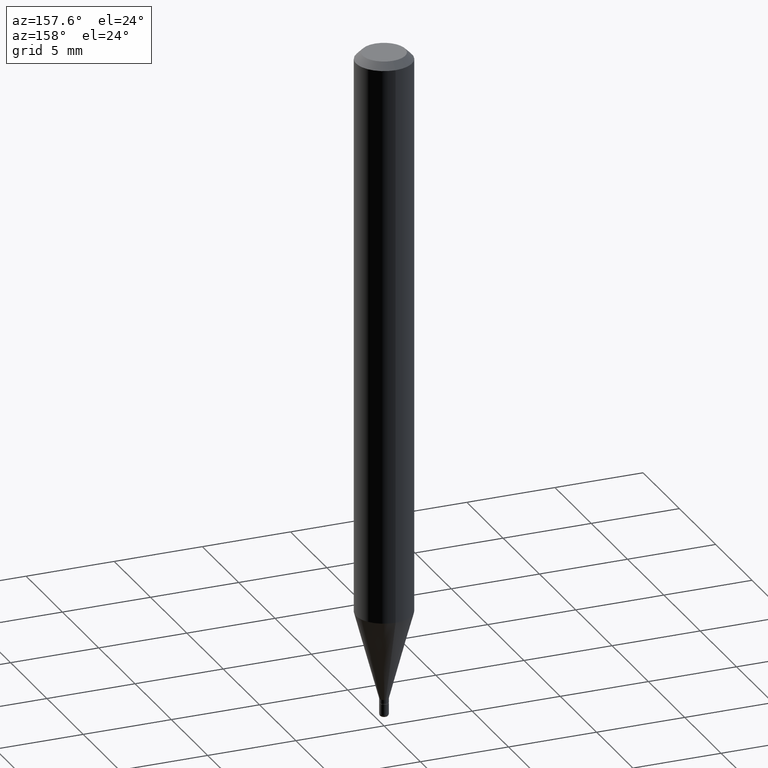
[diagram: clean part render]
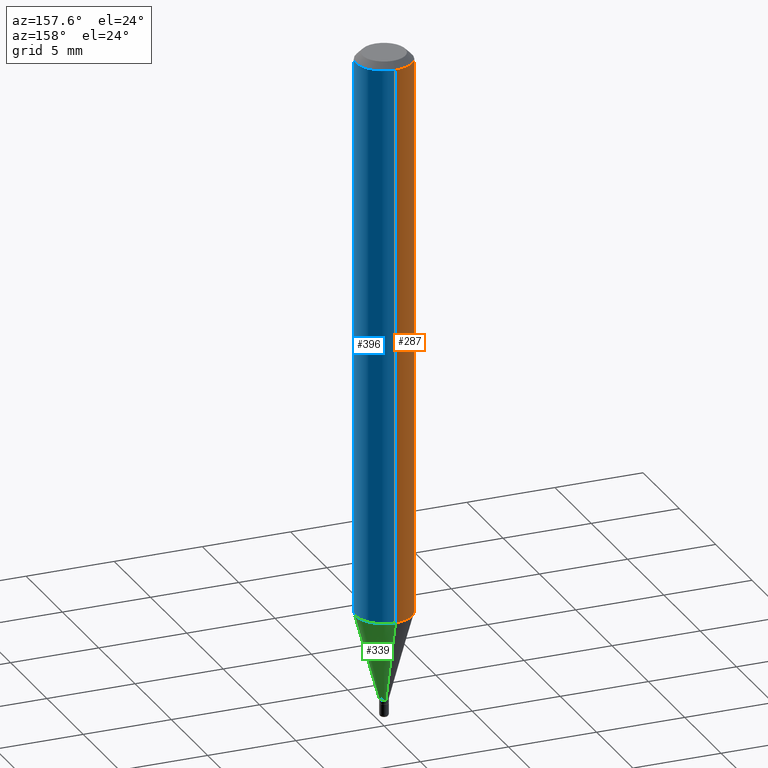
[diagram: same view with three faces highlighted in distinct colors, each labeled with its STEP entity id]
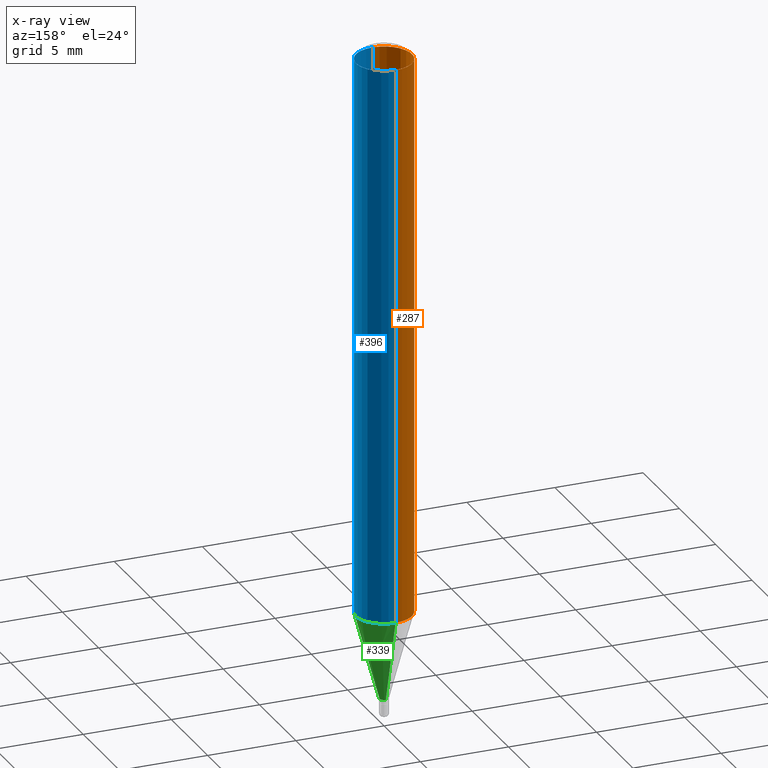
[diagram: x-ray of the same camera — body ghosted, the three highlighted faces saturated]
A machine part, auxiliary view with three faces highlighted in distinct colors.
The next image is the same camera in x-ray (body ghosted, the three faces saturated) — at least one of them is partly hidden behind the body in this view.
Their STEP definitions:

[orange] entity #287 — the highlighted cylindrical surface (edge-blend (fillet) strip) has radius 1.5875 mm, axis along (-0, 0, 1).
#6 = EDGE_CURVE ( 'NONE', #514, #316, #421, .T. ) ;
#20 = ORIENTED_EDGE ( 'NONE', *, *, #349, .F. ) ;
#23 = EDGE_CURVE ( 'NONE', #97, #514, #30, .T. ) ;
#28 = CARTESIAN_POINT ( 'NONE',  ( 4.440892098500625669E-16, 0.06250000000000000000, -2.182132246779680074E-16 ) ) ;
#30 = CIRCLE ( 'NONE', #354, 0.06250000000000000000 ) ;
#31 = ORIENTED_EDGE ( 'NONE', *, *, #368, .F. ) ;
#40 = LINE ( 'NONE', #28, #50 ) ;
#50 = VECTOR ( 'NONE', #348, 39.37007874015748143 ) ;
#53 = CARTESIAN_POINT ( 'NONE',  ( 3.091298793369065102E-29, -4.413379341716774381E-15, -1.264067332602634597 ) ) ;
#57 = DIRECTION ( 'NONE',  ( -6.982962677686265922E-15, -1.000000000000000000, 3.491411594847488118E-15 ) ) ;
#74 = DIRECTION ( 'NONE',  ( -6.982962677686265922E-15, -1.000000000000000000, 3.483106191921935554E-15 ) ) ;
#82 = DIRECTION ( 'NONE',  ( -2.445517508157004013E-29, 3.491411594847488118E-15, 1.000000000000000000 ) ) ;
#97 = VERTEX_POINT ( 'NONE', #480 ) ;
#136 = FACE_OUTER_BOUND ( 'NONE', #156, .T. ) ;
#142 = AXIS2_PLACEMENT_3D ( 'NONE', #508, #465, #74 ) ;
#156 = EDGE_LOOP ( 'NONE', ( #20, #191, #272, #31 ) ) ;
#158 = VERTEX_POINT ( 'NONE', #375 ) ;
#166 = AXIS2_PLACEMENT_3D ( 'NONE', #501, #497, #57 ) ;
#179 = CARTESIAN_POINT ( 'NONE',  ( -4.364351673553912750E-16, -0.06250000000000005551, -0.01500000000000003240 ) ) ;
#191 = ORIENTED_EDGE ( 'NONE', *, *, #23, .T. ) ;
#237 = CARTESIAN_POINT ( 'NONE',  ( -4.364351673553606573E-16, -0.06250000000000441314, -1.264067332602634375 ) ) ;
#240 = DIRECTION ( 'NONE',  ( -6.982962677686265922E-15, -1.000000000000000000, 4.370956789862821150E-15 ) ) ;
#272 = ORIENTED_EDGE ( 'NONE', *, *, #6, .T. ) ;
#287 = ADVANCED_FACE ( 'NONE', ( #136 ), #417, .T. ) ;
#289 = DIRECTION ( 'NONE',  ( -2.445517508157003732E-29, 3.491411594847488118E-15, 1.000000000000000000 ) ) ;
#316 = VERTEX_POINT ( 'NONE', #179 ) ;
#348 = DIRECTION ( 'NONE',  ( -2.445517508157004013E-29, 3.491411594847488118E-15, 1.000000000000000000 ) ) ;
#349 = EDGE_CURVE ( 'NONE', #97, #158, #40, .T. ) ;
#354 = AXIS2_PLACEMENT_3D ( 'NONE', #53, #289, #240 ) ;
#368 = EDGE_CURVE ( 'NONE', #158, #316, #374, .T. ) ;
#372 = CARTESIAN_POINT ( 'NONE',  ( -4.364351673553916201E-16, -0.06250000000000000000, 2.182132246779680074E-16 ) ) ;
#374 = CIRCLE ( 'NONE', #142, 0.06250000000000000000 ) ;
#375 = CARTESIAN_POINT ( 'NONE',  ( 4.440892098500936776E-16, 0.06249999999999993755, -0.01500000000000046782 ) ) ;
#417 = CYLINDRICAL_SURFACE ( 'NONE', #166, 0.06250000000000000000 ) ;
#421 = LINE ( 'NONE', #372, #470 ) ;
#465 = DIRECTION ( 'NONE',  ( -2.445517508157003732E-29, 3.491411594847488118E-15, 1.000000000000000000 ) ) ;
#470 = VECTOR ( 'NONE', #82, 39.37007874015748143 ) ;
#480 = CARTESIAN_POINT ( 'NONE',  ( 4.440892098500933817E-16, 0.06249999999999557992, -1.264067332602634819 ) ) ;
#497 = DIRECTION ( 'NONE',  ( -2.445517508157003732E-29, 3.491411594847488118E-15, 1.000000000000000000 ) ) ;
#501 = CARTESIAN_POINT ( 'NONE',  ( 0.000000000000000000, 0.000000000000000000, 0.000000000000000000 ) ) ;
#508 = CARTESIAN_POINT ( 'NONE',  ( 3.668276262235566117E-31, -5.237117392271319346E-17, -0.01500000000000024925 ) ) ;
#514 = VERTEX_POINT ( 'NONE', #237 ) ;

[blue] entity #396 — the highlighted cylindrical surface (edge-blend (fillet) strip) has radius 1.5875 mm, axis along (-0, 0, 1).
#5 = CARTESIAN_POINT ( 'NONE',  ( 3.091298793369065102E-29, -4.413379341716774381E-15, -1.264067332602634597 ) ) ;
#6 = EDGE_CURVE ( 'NONE', #514, #316, #421, .T. ) ;
#19 = AXIS2_PLACEMENT_3D ( 'NONE', #291, #169, #98 ) ;
#28 = CARTESIAN_POINT ( 'NONE',  ( 4.440892098500625669E-16, 0.06250000000000000000, -2.182132246779680074E-16 ) ) ;
#40 = LINE ( 'NONE', #28, #50 ) ;
#50 = VECTOR ( 'NONE', #348, 39.37007874015748143 ) ;
#66 = DIRECTION ( 'NONE',  ( -2.445517508157003732E-29, 3.491411594847488118E-15, 1.000000000000000000 ) ) ;
#82 = DIRECTION ( 'NONE',  ( -2.445517508157004013E-29, 3.491411594847488118E-15, 1.000000000000000000 ) ) ;
#97 = VERTEX_POINT ( 'NONE', #480 ) ;
#98 = DIRECTION ( 'NONE',  ( -6.982962677686265922E-15, -1.000000000000000000, 3.483106191921935554E-15 ) ) ;
#109 = EDGE_CURVE ( 'NONE', #514, #97, #241, .T. ) ;
#121 = DIRECTION ( 'NONE',  ( -2.445517508157003732E-29, 3.491411594847488118E-15, 1.000000000000000000 ) ) ;
#138 = ORIENTED_EDGE ( 'NONE', *, *, #6, .F. ) ;
#158 = VERTEX_POINT ( 'NONE', #375 ) ;
#169 = DIRECTION ( 'NONE',  ( -2.445517508157003732E-29, 3.491411594847488118E-15, 1.000000000000000000 ) ) ;
#176 = AXIS2_PLACEMENT_3D ( 'NONE', #474, #66, #430 ) ;
#179 = CARTESIAN_POINT ( 'NONE',  ( -4.364351673553912750E-16, -0.06250000000000005551, -0.01500000000000003240 ) ) ;
#188 = ORIENTED_EDGE ( 'NONE', *, *, #245, .F. ) ;
#237 = CARTESIAN_POINT ( 'NONE',  ( -4.364351673553606573E-16, -0.06250000000000441314, -1.264067332602634375 ) ) ;
#241 = CIRCLE ( 'NONE', #334, 0.06250000000000000000 ) ;
#245 = EDGE_CURVE ( 'NONE', #316, #158, #481, .T. ) ;
#291 = CARTESIAN_POINT ( 'NONE',  ( 3.668276262235566117E-31, -5.237117392271319346E-17, -0.01500000000000024925 ) ) ;
#316 = VERTEX_POINT ( 'NONE', #179 ) ;
#331 = ORIENTED_EDGE ( 'NONE', *, *, #349, .T. ) ;
#334 = AXIS2_PLACEMENT_3D ( 'NONE', #5, #121, #408 ) ;
#348 = DIRECTION ( 'NONE',  ( -2.445517508157004013E-29, 3.491411594847488118E-15, 1.000000000000000000 ) ) ;
#349 = EDGE_CURVE ( 'NONE', #97, #158, #40, .T. ) ;
#372 = CARTESIAN_POINT ( 'NONE',  ( -4.364351673553916201E-16, -0.06250000000000000000, 2.182132246779680074E-16 ) ) ;
#375 = CARTESIAN_POINT ( 'NONE',  ( 4.440892098500936776E-16, 0.06249999999999993755, -0.01500000000000046782 ) ) ;
#389 = CYLINDRICAL_SURFACE ( 'NONE', #176, 0.06250000000000000000 ) ;
#396 = ADVANCED_FACE ( 'NONE', ( #436 ), #389, .T. ) ;
#408 = DIRECTION ( 'NONE',  ( -6.982962677686265922E-15, -1.000000000000000000, 4.370956789862821150E-15 ) ) ;
#421 = LINE ( 'NONE', #372, #470 ) ;
#430 = DIRECTION ( 'NONE',  ( -6.982962677686265922E-15, -1.000000000000000000, 3.491411594847488118E-15 ) ) ;
#435 = ORIENTED_EDGE ( 'NONE', *, *, #109, .T. ) ;
#436 = FACE_OUTER_BOUND ( 'NONE', #500, .T. ) ;
#470 = VECTOR ( 'NONE', #82, 39.37007874015748143 ) ;
#474 = CARTESIAN_POINT ( 'NONE',  ( 0.000000000000000000, 0.000000000000000000, 0.000000000000000000 ) ) ;
#480 = CARTESIAN_POINT ( 'NONE',  ( 4.440892098500933817E-16, 0.06249999999999557992, -1.264067332602634819 ) ) ;
#481 = CIRCLE ( 'NONE', #19, 0.06250000000000000000 ) ;
#500 = EDGE_LOOP ( 'NONE', ( #435, #331, #188, #138 ) ) ;
#514 = VERTEX_POINT ( 'NONE', #237 ) ;

[green] entity #339 — the highlighted conical surface has half-angle 15 deg.
#4 = CARTESIAN_POINT ( 'NONE',  ( 3.570455561909225225E-29, -5.097460928477334009E-15, -1.460000000000000187 ) ) ;
#5 = CARTESIAN_POINT ( 'NONE',  ( 3.091298793369065102E-29, -4.413379341716774381E-15, -1.264067332602634597 ) ) ;
#18 = AXIS2_PLACEMENT_3D ( 'NONE', #4, #446, #88 ) ;
#25 = EDGE_CURVE ( 'NONE', #227, #394, #326, .T. ) ;
#73 = ORIENTED_EDGE ( 'NONE', *, *, #25, .T. ) ;
#86 = VECTOR ( 'NONE', #488, 39.37007874015748854 ) ;
#87 = AXIS2_PLACEMENT_3D ( 'NONE', #139, #312, #229 ) ;
#88 = DIRECTION ( 'NONE',  ( -6.982962677686265133E-15, -1.000000000000000000, 0.000000000000000000 ) ) ;
#97 = VERTEX_POINT ( 'NONE', #480 ) ;
#106 = CARTESIAN_POINT ( 'NONE',  ( 2.575717417130700727E-16, 0.009999999999994993796, -1.460000000000000187 ) ) ;
#109 = EDGE_CURVE ( 'NONE', #514, #97, #241, .T. ) ;
#117 = LINE ( 'NONE', #286, #86 ) ;
#118 = EDGE_CURVE ( 'NONE', #394, #97, #117, .T. ) ;
#121 = DIRECTION ( 'NONE',  ( -2.445517508157003732E-29, 3.491411594847488118E-15, 1.000000000000000000 ) ) ;
#139 = CARTESIAN_POINT ( 'NONE',  ( 3.570455561909225225E-29, -5.097460928477334009E-15, -1.460000000000000187 ) ) ;
#184 = VECTOR ( 'NONE', #398, 39.37007874015748854 ) ;
#227 = VERTEX_POINT ( 'NONE', #298 ) ;
#229 = DIRECTION ( 'NONE',  ( -6.982962677686265133E-15, -1.000000000000000000, 0.000000000000000000 ) ) ;
#231 = EDGE_LOOP ( 'NONE', ( #73, #438, #297, #309 ) ) ;
#237 = CARTESIAN_POINT ( 'NONE',  ( -4.364351673553606573E-16, -0.06250000000000441314, -1.264067332602634375 ) ) ;
#241 = CIRCLE ( 'NONE', #334, 0.06250000000000000000 ) ;
#266 = LINE ( 'NONE', #513, #184 ) ;
#286 = CARTESIAN_POINT ( 'NONE',  ( 7.105427357604634465E-17, 0.009999999999994993796, -1.460000000000000187 ) ) ;
#297 = ORIENTED_EDGE ( 'NONE', *, *, #109, .F. ) ;
#298 = CARTESIAN_POINT ( 'NONE',  ( -6.982962677682758991E-17, -0.01000000000000518703, -1.460000000000000187 ) ) ;
#309 = ORIENTED_EDGE ( 'NONE', *, *, #472, .F. ) ;
#312 = DIRECTION ( 'NONE',  ( -2.445517508157003732E-29, 3.491411594847488118E-15, 1.000000000000000000 ) ) ;
#326 = CIRCLE ( 'NONE', #18, 0.01000000000000009041 ) ;
#334 = AXIS2_PLACEMENT_3D ( 'NONE', #5, #121, #408 ) ;
#339 = ADVANCED_FACE ( 'NONE', ( #341 ), #390, .T. ) ;
#341 = FACE_OUTER_BOUND ( 'NONE', #231, .T. ) ;
#390 = CONICAL_SURFACE ( 'NONE', #87, 0.01000000000000009041, 0.2617993877991494633 ) ;
#394 = VERTEX_POINT ( 'NONE', #106 ) ;
#398 = DIRECTION ( 'NONE',  ( -1.807323732225324223E-15, -0.2588190451025173533, 0.9659258262890690894 ) ) ;
#408 = DIRECTION ( 'NONE',  ( -6.982962677686265922E-15, -1.000000000000000000, 4.370956789862821150E-15 ) ) ;
#438 = ORIENTED_EDGE ( 'NONE', *, *, #118, .T. ) ;
#446 = DIRECTION ( 'NONE',  ( -2.445517508157003732E-29, 3.491411594847488118E-15, 1.000000000000000000 ) ) ;
#472 = EDGE_CURVE ( 'NONE', #227, #514, #266, .T. ) ;
#480 = CARTESIAN_POINT ( 'NONE',  ( 4.440892098500933817E-16, 0.06249999999999557992, -1.264067332602634819 ) ) ;
#488 = DIRECTION ( 'NONE',  ( 1.839019923739594399E-15, 0.2588190451025241257, 0.9659258262890673130 ) ) ;
#513 = CARTESIAN_POINT ( 'NONE',  ( -6.982962677682758991E-17, -0.01000000000000518703, -1.460000000000000187 ) ) ;
#514 = VERTEX_POINT ( 'NONE', #237 ) ;